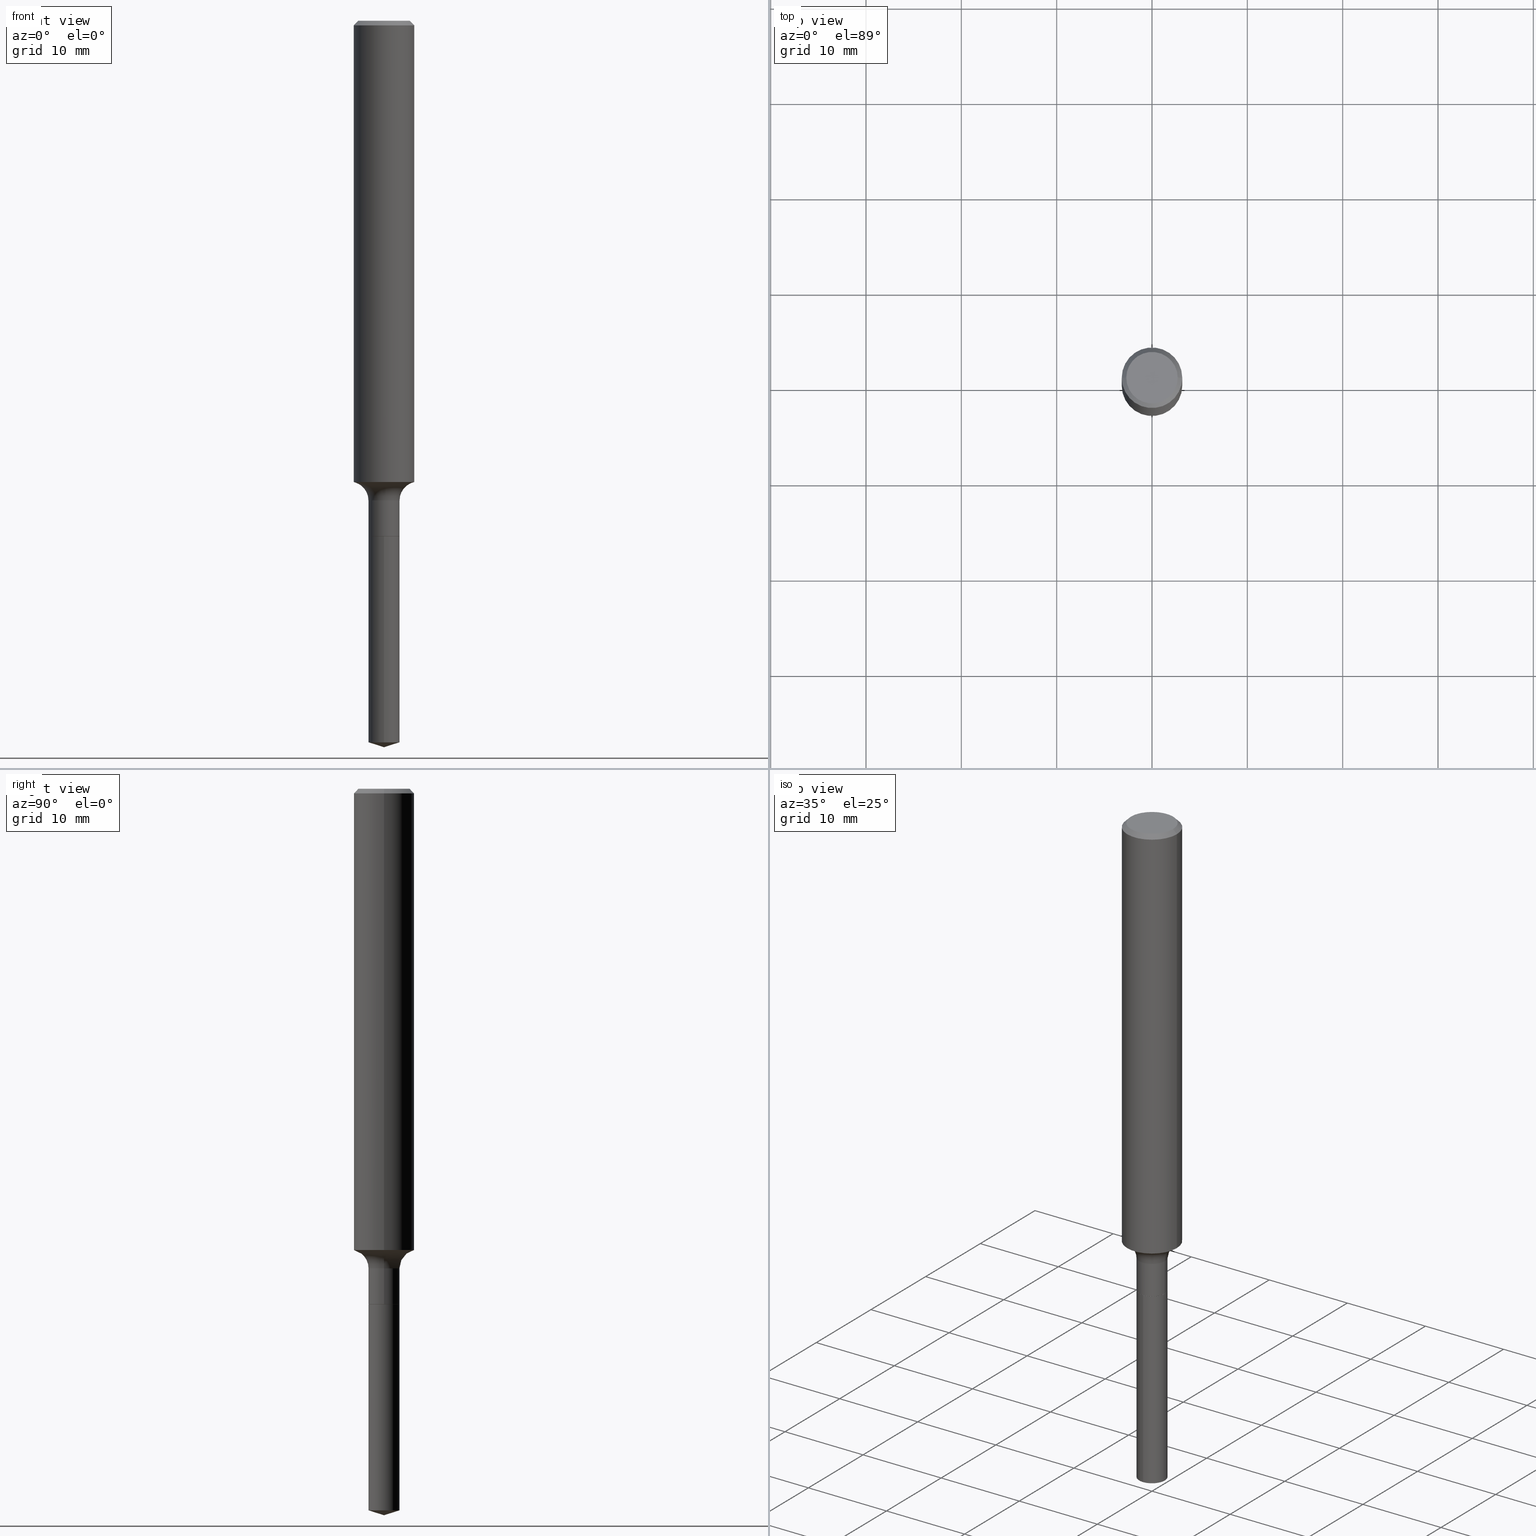
[diagram: canonical four-view strip — front | top / right | iso, engineering-drawing reading convention]
A machine part, canonical four-view strip (front | top / right | iso — engineering-drawing reading convention). The complete STEP part file that produces these views, byte-faithful:
ISO-10303-21;
HEADER;
FILE_DESCRIPTION (( 'STEP AP203' ),
    '1' );
FILE_NAME ('51581.STEP',
    '2024-04-19T13:02:28',
    ( '' ),
    ( '' ),
    'SwSTEP 2.0',
    'SolidWorks 2023',
    '' );
FILE_SCHEMA (( 'CONFIG_CONTROL_DESIGN' ));
ENDSEC;

DATA;
#1 = CARTESIAN_POINT ( 'NONE',  ( 5.205180353965063757E-29, -7.431618029727636515E-15, -2.128500000000000281 ) ) ;
#2 = CC_DESIGN_PERSON_AND_ORGANIZATION_ASSIGNMENT ( #200, #244, ( #61 ) ) ;
#3 = CARTESIAN_POINT ( 'NONE',  ( 6.364025535057318316E-46, -9.086141822531067035E-32, -2.602374448188125350E-17 ) ) ;
#4 = AXIS2_PLACEMENT_3D ( 'NONE', #57, #320, #131 ) ;
#5 = EDGE_CURVE ( 'NONE', #116, #245, #303, .T. ) ;
#6 = DIRECTION ( 'NONE',  ( -2.445468806185136597E-29, 3.491481338843145583E-15, 1.000000000000000000 ) ) ;
#7 = DIRECTION ( 'NONE',  ( -2.432262427219051972E-29, 3.510393625182989669E-15, 1.000000000000000000 ) ) ;
#8 = VECTOR ( 'NONE', #258, 39.37007874015748143 ) ;
#9 = VERTEX_POINT ( 'NONE', #422 ) ;
#10 = LINE ( 'NONE', #192, #478 ) ;
#11 = DIRECTION ( 'NONE',  ( 1.000000000000000000, -6.982962677686266711E-15, 4.877714189860772023E-29 ) ) ;
#12 = CARTESIAN_POINT ( 'NONE',  ( -4.486553520412906226E-16, -0.06425000000000745393, -2.128499999999999837 ) ) ;
#13 = ORIENTED_EDGE ( 'NONE', *, *, #193, .F. ) ;
#14 = AXIS2_PLACEMENT_3D ( 'NONE', #315, #6, #292 ) ;
#15 = SECURITY_CLASSIFICATION_LEVEL ( 'unclassified' ) ;
#16 = DIRECTION ( 'NONE',  ( -2.445468806185136597E-29, 3.491481338843145583E-15, 1.000000000000000000 ) ) ;
#17 = COORDINATED_UNIVERSAL_TIME_OFFSET ( 5, 0, .BEHIND. ) ;
#18 = DIRECTION ( 'NONE',  ( -1.000000000000000000, 7.105427357601003436E-15, 0.000000000000000000 ) ) ;
#19 = DIRECTION ( 'NONE',  ( 1.000000000000000000, -6.982962677686263555E-15, 0.000000000000000000 ) ) ;
#20 = AXIS2_PLACEMENT_3D ( 'NONE', #421, #240, #187 ) ;
#21 = APPROVAL_DATE_TIME ( #206, #445 ) ;
#22 = DIRECTION ( 'NONE',  ( 1.000000000000000000, -6.982962677686269077E-15, 0.000000000000000000 ) ) ;
#23 = CARTESIAN_POINT ( 'NONE',  ( 0.1422499999999999876, -7.908903528747489001E-15, -1.980699999999999905 ) ) ;
#24 = DIRECTION ( 'NONE',  ( -2.445468806185136597E-29, 3.491481338843145583E-15, 1.000000000000000000 ) ) ;
#25 = AXIS2_PLACEMENT_3D ( 'NONE', #340, #295, #103 ) ;
#26 = CARTESIAN_POINT ( 'NONE',  ( 4.565237077259373501E-16, 0.06424999999999256306, -2.128500000000000725 ) ) ;
#27 = EDGE_LOOP ( 'NONE', ( #138, #186 ) ) ;
#28 = CARTESIAN_POINT ( 'NONE',  ( 0.1250000000000000000, -9.383356098140928781E-16, -0.01875000000000014155 ) ) ;
#29 = VERTEX_POINT ( 'NONE', #79 ) ;
#30 = DIRECTION ( 'NONE',  ( -6.982962677686265922E-15, -1.000000000000000000, 3.500519750498636590E-15 ) ) ;
#31 = ORIENTED_EDGE ( 'NONE', *, *, #273, .T. ) ;
#32 = AXIS2_PLACEMENT_3D ( 'NONE', #105, #377, #30 ) ;
#33 = CARTESIAN_POINT ( 'NONE',  ( 4.657716586061579389E-29, -6.649984862093984679E-15, -1.904631363230303576 ) ) ;
#34 = ORIENTED_EDGE ( 'NONE', *, *, #176, .T. ) ;
#35 = CARTESIAN_POINT ( 'NONE',  ( 7.275624415494651683E-29, -1.041981270541542944E-14, -2.979742052814525977 ) ) ;
#36 = DIRECTION ( 'NONE',  ( -2.445468806185136597E-29, 3.491481338843145583E-15, 1.000000000000000000 ) ) ;
#37 =( LENGTH_UNIT ( ) NAMED_UNIT ( * ) SI_UNIT ( $, .METRE. ) );
#38 = ORIENTED_EDGE ( 'NONE', *, *, #449, .T. ) ;
#39 = EDGE_CURVE ( 'NONE', #66, #420, #470, .T. ) ;
#40 = DIRECTION ( 'NONE',  ( -2.432262427219051972E-29, 3.510393625182989669E-15, 1.000000000000000000 ) ) ;
#41 = AXIS2_PLACEMENT_3D ( 'NONE', #481, #304, #220 ) ;
#42 = CARTESIAN_POINT ( 'NONE',  ( 5.205180353965064878E-29, -7.431618029727636515E-15, -2.128500000000000725 ) ) ;
#43 = TOROIDAL_SURFACE ( 'NONE', #44, 0.1422499999999999876, 0.07800000000000006928 ) ;
#44 = AXIS2_PLACEMENT_3D ( 'NONE', #253, #216, #335 ) ;
#45 = CARTESIAN_POINT ( 'NONE',  ( 7.296787281657156478E-29, -1.053118087554896822E-14, -3.000000000000000444 ) ) ;
#46 = ORIENTED_EDGE ( 'NONE', *, *, #257, .T. ) ;
#47 = VECTOR ( 'NONE', #275, 39.37007874015748854 ) ;
#48 = ORIENTED_EDGE ( 'NONE', *, *, #323, .F. ) ;
#49 = DIRECTION ( 'NONE',  ( -2.432262427219051972E-29, 3.510393625182989669E-15, 1.000000000000000000 ) ) ;
#50 = CIRCLE ( 'NONE', #467, 0.1250000000000002498 ) ;
#51 = CARTESIAN_POINT ( 'NONE',  ( 0.000000000000000000, 0.000000000000000000, 0.000000000000000000 ) ) ;
#52 = PRODUCT ( '51581', '51581', '', ( #278 ) ) ;
#53 = CALENDAR_DATE ( 2024, 19, 4 ) ;
#54 = ADVANCED_FACE ( 'NONE', ( #279 ), #338, .T. ) ;
#55 = FACE_OUTER_BOUND ( 'NONE', #347, .T. ) ;
#56 = APPROVAL_ROLE ( '' ) ;
#57 = CARTESIAN_POINT ( 'NONE',  ( 5.205180353965064878E-29, -7.431618029727636515E-15, -2.128500000000000725 ) ) ;
#58 = ADVANCED_FACE ( 'NONE', ( #117 ), #238, .T. ) ;
#59 = AXIS2_PLACEMENT_3D ( 'NONE', #23, #403, #19 ) ;
#60 = FACE_OUTER_BOUND ( 'NONE', #302, .T. ) ;
#61 = PRODUCT_DEFINITION ( 'UNKNOWN', '', #443, #112 ) ;
#62 = LINE ( 'NONE', #109, #429 ) ;
#63 = ORIENTED_EDGE ( 'NONE', *, *, #264, .T. ) ;
#64 = VECTOR ( 'NONE', #400, 39.37007874015748143 ) ;
#65 = CARTESIAN_POINT ( 'NONE',  ( 4.657716586061579389E-29, -6.649984862093984679E-15, -1.904631363230303576 ) ) ;
#66 = VERTEX_POINT ( 'NONE', #81 ) ;
#67 = CYLINDRICAL_SURFACE ( 'NONE', #128, 0.06425000000000001543 ) ;
#68 = ORIENTED_EDGE ( 'NONE', *, *, #210, .F. ) ;
#69 = VECTOR ( 'NONE', #426, 39.37007874015748854 ) ;
#70 = CARTESIAN_POINT ( 'NONE',  ( -4.486553520412698164E-16, -0.06425000000001042377, -2.979742052814525977 ) ) ;
#71 = ORIENTED_EDGE ( 'NONE', *, *, #427, .F. ) ;
#72 = AXIS2_PLACEMENT_3D ( 'NONE', #472, #480, #132 ) ;
#73 = CARTESIAN_POINT ( 'NONE',  ( -0.06425000000000001543, -6.716200980726552309E-15, -2.128000000000000558 ) ) ;
#74 = ORIENTED_EDGE ( 'NONE', *, *, #484, .F. ) ;
#75 = EDGE_CURVE ( 'NONE', #420, #66, #102, .T. ) ;
#76 = PERSON_AND_ORGANIZATION ( #357, #247 ) ;
#77 = DIRECTION ( 'NONE',  ( 2.445468806185136597E-29, -3.491481338843145583E-15, -1.000000000000000000 ) ) ;
#78 = ADVANCED_FACE ( 'NONE', ( #156 ), #288, .T. ) ;
#79 = CARTESIAN_POINT ( 'NONE',  ( 0.06424999999999998768, -7.364232439887960955E-15, -1.980699999999999905 ) ) ;
#80 = APPROVAL_ROLE ( '' ) ;
#81 = CARTESIAN_POINT ( 'NONE',  ( 0.1062499999999999972, -8.259777185439880671E-16, -2.602374448187577153E-17 ) ) ;
#82 = EDGE_CURVE ( 'NONE', #9, #379, #246, .T. ) ;
#83 = MANIFOLD_SOLID_BREP ( 'Body-Move/Copy2[2]', #432 ) ;
#84 = CARTESIAN_POINT ( 'NONE',  ( 3.182012767528659158E-46, -4.543070911265533518E-32, -1.301187224094062675E-17 ) ) ;
#85 = PRODUCT_RELATED_PRODUCT_CATEGORY ( 'detail', '', ( #52 ) ) ;
#86 = VERTEX_POINT ( 'NONE', #251 ) ;
#87 = MANIFOLD_SOLID_BREP ( 'Body-Move/Copy2[1]', #462 ) ;
#88 = CALENDAR_DATE ( 2024, 19, 4 ) ;
#89 = VERTEX_POINT ( 'NONE', #125 ) ;
#90 = CALENDAR_DATE ( 2024, 19, 4 ) ;
#91 = CARTESIAN_POINT ( 'NONE',  ( 5.205180353965063757E-29, -7.431618029727636515E-15, -2.128500000000000281 ) ) ;
#92 = CIRCLE ( 'NONE', #239, 0.07800000000000008316 ) ;
#93 = DIRECTION ( 'NONE',  ( -2.445468806185136597E-29, 3.491481338843145583E-15, 1.000000000000000000 ) ) ;
#94 = DATE_AND_TIME ( #204, #183 ) ;
#95 = CARTESIAN_POINT ( 'NONE',  ( 0.000000000000000000, 0.000000000000000000, 0.000000000000000000 ) ) ;
#96 = EDGE_CURVE ( 'NONE', #86, #464, #92, .T. ) ;
#97 = COORDINATED_UNIVERSAL_TIME_OFFSET ( 5, 0, .BEHIND. ) ;
#98 = DIRECTION ( 'NONE',  ( 7.105427357601001859E-15, 1.000000000000000000, -3.491481338843145583E-15 ) ) ;
#99 = CC_DESIGN_PERSON_AND_ORGANIZATION_ASSIGNMENT ( #237, #230, ( #52 ) ) ;
#100 = CIRCLE ( 'NONE', #381, 0.1250000000000002498 ) ;
#101 = CYLINDRICAL_SURFACE ( 'NONE', #142, 0.06425000000000000155 ) ;
#102 = CIRCLE ( 'NONE', #442, 0.1062499999999999972 ) ;
#103 = DIRECTION ( 'NONE',  ( 1.000000000000000000, -6.982962677686268288E-15, 4.883557194083113462E-29 ) ) ;
#104 = ORIENTED_EDGE ( 'NONE', *, *, #257, .F. ) ;
#105 = CARTESIAN_POINT ( 'NONE',  ( -8.843346621705416771E-28, 1.277135473583265653E-13, 36.37007874015748143 ) ) ;
#106 = ORIENTED_EDGE ( 'NONE', *, *, #336, .F. ) ;
#107 = AXIS2_PLACEMENT_3D ( 'NONE', #363, #49, #435 ) ;
#108 = ADVANCED_FACE ( 'NONE', ( #286 ), #160, .T. ) ;
#109 = CARTESIAN_POINT ( 'NONE',  ( 0.1250000000000001110, -8.728703347107842263E-16, 6.095220969744926047E-30 ) ) ;
#110 = ADVANCED_BREP_SHAPE_REPRESENTATION ( '51581', ( #87, #83, #20 ), #113 ) ;
#111 = DIRECTION ( 'NONE',  ( 1.000000000000000000, -6.982962677686264344E-15, 0.000000000000000000 ) ) ;
#112 = DESIGN_CONTEXT ( 'detailed design', #297, 'design' ) ;
#113 =( GEOMETRIC_REPRESENTATION_CONTEXT ( 3 ) GLOBAL_UNCERTAINTY_ASSIGNED_CONTEXT ( ( #226 ) ) GLOBAL_UNIT_ASSIGNED_CONTEXT ( ( #346, #388, #355 ) ) REPRESENTATION_CONTEXT ( 'NONE', 'WORKASPACE' ) );
#114 = APPLICATION_PROTOCOL_DEFINITION ( 'international standard', 'config_control_design', 1994, #297 ) ;
#115 = CARTESIAN_POINT ( 'NONE',  ( 5.205180353965064878E-29, -7.431618029727636515E-15, -2.128500000000000725 ) ) ;
#116 = VERTEX_POINT ( 'NONE', #479 ) ;
#117 = FACE_OUTER_BOUND ( 'NONE', #393, .T. ) ;
#118 = CC_DESIGN_PERSON_AND_ORGANIZATION_ASSIGNMENT ( #434, #163, ( #443 ) ) ;
#119 = DIRECTION ( 'NONE',  ( 0.7071067811864267805, -2.468850131080992517E-15, 0.7071067811866682540 ) ) ;
#120 = CIRCLE ( 'NONE', #152, 0.06424999999999998768 ) ;
#121 = LOCAL_TIME ( 9, 2, 28.00000000000000000, #97 ) ;
#122 = ORIENTED_EDGE ( 'NONE', *, *, #322, .F. ) ;
#123 = APPROVAL_ROLE ( '' ) ;
#124 = DIRECTION ( 'NONE',  ( -2.445468806185136597E-29, 3.491481338843145583E-15, 1.000000000000000000 ) ) ;
#125 = CARTESIAN_POINT ( 'NONE',  ( 0.1250000000000003331, -7.522855196804770385E-15, -1.904631363230303576 ) ) ;
#126 = DATE_TIME_ROLE ( 'classification_date' ) ;
#127 = FACE_OUTER_BOUND ( 'NONE', #178, .T. ) ;
#128 = AXIS2_PLACEMENT_3D ( 'NONE', #174, #222, #414 ) ;
#129 = APPROVAL_DATE_TIME ( #475, #425 ) ;
#130 = CARTESIAN_POINT ( 'NONE',  ( 0.06375000000000000111, -7.876781900430136491E-15, -2.128500000000000725 ) ) ;
#131 = DIRECTION ( 'NONE',  ( 1.000000000000000000, -6.982962677686260400E-15, 0.000000000000000000 ) ) ;
#132 = DIRECTION ( 'NONE',  ( 1.000000000000000000, -6.982962677686266711E-15, 0.000000000000000000 ) ) ;
#133 = PRODUCT_DEFINITION_SHAPE ( 'NONE', 'NONE',  #61 ) ;
#134 = CC_DESIGN_SECURITY_CLASSIFICATION ( #396, ( #443 ) ) ;
#135 = DIRECTION ( 'NONE',  ( -2.445468806185136597E-29, 3.491481338843145583E-15, 1.000000000000000000 ) ) ;
#136 = ORIENTED_EDGE ( 'NONE', *, *, #173, .T. ) ;
#137 = DIRECTION ( 'NONE',  ( -2.432262427219051972E-29, 3.510393625182989669E-15, 1.000000000000000000 ) ) ;
#138 = ORIENTED_EDGE ( 'NONE', *, *, #75, .T. ) ;
#139 = ADVANCED_FACE ( 'NONE', ( #205 ), #408, .T. ) ;
#140 = CARTESIAN_POINT ( 'NONE',  ( -1.164090486565299290E-29, -1.655277638975020227E-14, -2.128500000000000725 ) ) ;
#141 = ORIENTED_EDGE ( 'NONE', *, *, #436, .F. ) ;
#142 = AXIS2_PLACEMENT_3D ( 'NONE', #51, #203, #394 ) ;
#143 = APPROVAL_PERSON_ORGANIZATION ( #76, #445, #80 ) ;
#144 = EDGE_CURVE ( 'NONE', #464, #29, #120, .T. ) ;
#145 = CARTESIAN_POINT ( 'NONE',  ( -8.843346621705416771E-28, 1.277135473583265653E-13, 36.37007874015748143 ) ) ;
#146 = ORIENTED_EDGE ( 'NONE', *, *, #364, .F. ) ;
#147 = FACE_OUTER_BOUND ( 'NONE', #181, .T. ) ;
#148 = VERTEX_POINT ( 'NONE', #289 ) ;
#149 = EDGE_CURVE ( 'NONE', #148, #344, #218, .T. ) ;
#150 = CARTESIAN_POINT ( 'NONE',  ( 7.353499816053537640E-29, -1.045067127260025243E-14, -3.000000000000000444 ) ) ;
#151 = DIRECTION ( 'NONE',  ( 1.000000000000000000, -6.982962677686260400E-15, 0.000000000000000000 ) ) ;
#152 = AXIS2_PLACEMENT_3D ( 'NONE', #366, #440, #405 ) ;
#153 = ORIENTED_EDGE ( 'NONE', *, *, #193, .T. ) ;
#154 = ORIENTED_EDGE ( 'NONE', *, *, #235, .T. ) ;
#155 = LINE ( 'NONE', #306, #277 ) ;
#156 = FACE_OUTER_BOUND ( 'NONE', #175, .T. ) ;
#157 = AXIS2_PLACEMENT_3D ( 'NONE', #213, #93, #162 ) ;
#158 = ORIENTED_EDGE ( 'NONE', *, *, #210, .T. ) ;
#159 = DATE_AND_TIME ( #53, #407 ) ;
#160 = CYLINDRICAL_SURFACE ( 'NONE', #207, 0.06425000000000000155 ) ;
#161 = ADVANCED_FACE ( 'NONE', ( #60 ), #328, .F. ) ;
#162 = DIRECTION ( 'NONE',  ( 1.000000000000000000, -6.982962677686267499E-15, 4.876176775795936353E-29 ) ) ;
#163 = PERSON_AND_ORGANIZATION_ROLE ( 'design_supplier' ) ;
#164 = FACE_OUTER_BOUND ( 'NONE', #243, .T. ) ;
#165 = DIMENSIONAL_EXPONENTS ( 1.000000000000000000, 0.000000000000000000, 0.000000000000000000, 0.000000000000000000, 0.000000000000000000, 0.000000000000000000, 0.000000000000000000 ) ;
#166 = PERSON_AND_ORGANIZATION_ROLE ( 'classification_officer' ) ;
#167 = DIRECTION ( 'NONE',  ( 1.000000000000000000, -6.982962677686267499E-15, 4.876176775795936353E-29 ) ) ;
#168 = ADVANCED_FACE ( 'NONE', ( #127 ), #189, .T. ) ;
#169 = APPROVAL ( #250, 'UNSPECIFIED' ) ;
#170 = COORDINATED_UNIVERSAL_TIME_OFFSET ( 5, 0, .BEHIND. ) ;
#171 = DIRECTION ( 'NONE',  ( -2.445468806185136597E-29, 3.491481338843145583E-15, 1.000000000000000000 ) ) ;
#172 = AXIS2_PLACEMENT_3D ( 'NONE', #35, #40, #242 ) ;
#173 = EDGE_CURVE ( 'NONE', #223, #466, #201, .T. ) ;
#174 = CARTESIAN_POINT ( 'NONE',  ( 5.205180353965063757E-29, -7.431618029727636515E-15, -2.128500000000000281 ) ) ;
#175 = EDGE_LOOP ( 'NONE', ( #352, #154, #376, #305 ) ) ;
#176 = EDGE_CURVE ( 'NONE', #223, #29, #293, .T. ) ;
#177 = FACE_OUTER_BOUND ( 'NONE', #337, .T. ) ;
#178 = EDGE_LOOP ( 'NONE', ( #199, #300, #383, #122 ) ) ;
#179 = FACE_OUTER_BOUND ( 'NONE', #27, .T. ) ;
#180 = ORIENTED_EDGE ( 'NONE', *, *, #378, .T. ) ;
#181 = EDGE_LOOP ( 'NONE', ( #354, #104, #153, #231 ) ) ;
#182 = ADVANCED_FACE ( 'NONE', ( #55 ), #370, .T. ) ;
#183 = LOCAL_TIME ( 9, 2, 28.00000000000000000, #212 ) ;
#184 = CARTESIAN_POINT ( 'NONE',  ( 7.275624415494651683E-29, -1.041981270541542944E-14, -2.979742052814525977 ) ) ;
#185 = VERTEX_POINT ( 'NONE', #331 ) ;
#186 = ORIENTED_EDGE ( 'NONE', *, *, #39, .T. ) ;
#187 = DIRECTION ( 'NONE',  ( 1.000000000000000000, 0.000000000000000000, 0.000000000000000000 ) ) ;
#188 = ORIENTED_EDGE ( 'NONE', *, *, #391, .F. ) ;
#189 = CONICAL_SURFACE ( 'NONE', #4, 0.06375000000000000111, 0.7853981633972775267 ) ;
#190 = CIRCLE ( 'NONE', #372, 0.06424999999999998768 ) ;
#191 = LOCAL_TIME ( 9, 2, 28.00000000000000000, #17 ) ;
#192 = CARTESIAN_POINT ( 'NONE',  ( -0.1250000000000000000, 8.074050596074738982E-16, -0.01875000000000014155 ) ) ;
#193 = EDGE_CURVE ( 'NONE', #89, #29, #406, .T. ) ;
#194 = DIRECTION ( 'NONE',  ( -2.445468806185136597E-29, 3.491481338843145583E-15, 1.000000000000000000 ) ) ;
#195 = DIRECTION ( 'NONE',  ( -2.445468806185136877E-29, 3.491481338843145188E-15, 1.000000000000000000 ) ) ;
#196 = ORIENTED_EDGE ( 'NONE', *, *, #264, .F. ) ;
#197 = VECTOR ( 'NONE', #119, 39.37007874015748143 ) ;
#198 = LINE ( 'NONE', #45, #47 ) ;
#199 = ORIENTED_EDGE ( 'NONE', *, *, #235, .F. ) ;
#200 = PERSON_AND_ORGANIZATION ( #357, #247 ) ;
#201 = CIRCLE ( 'NONE', #474, 0.06425000000000000155 ) ;
#202 = LINE ( 'NONE', #361, #350 ) ;
#203 = DIRECTION ( 'NONE',  ( -2.445468806185136597E-29, 3.491481338843145583E-15, 1.000000000000000000 ) ) ;
#204 = CALENDAR_DATE ( 2024, 19, 4 ) ;
#205 = FACE_OUTER_BOUND ( 'NONE', #313, .T. ) ;
#206 = DATE_AND_TIME ( #88, #121 ) ;
#207 = AXIS2_PLACEMENT_3D ( 'NONE', #95, #171, #252 ) ;
#208 = DIRECTION ( 'NONE',  ( 6.982962677686265922E-15, 1.000000000000000000, -3.510393625182989669E-15 ) ) ;
#209 = LOCAL_TIME ( 9, 2, 28.00000000000000000, #402 ) ;
#210 = EDGE_CURVE ( 'NONE', #379, #9, #358, .T. ) ;
#211 = EDGE_CURVE ( 'NONE', #86, #9, #321, .T. ) ;
#212 = COORDINATED_UNIVERSAL_TIME_OFFSET ( 5, 0, .BEHIND. ) ;
#213 = CARTESIAN_POINT ( 'NONE',  ( 0.000000000000000000, 0.000000000000000000, 0.000000000000000000 ) ) ;
#214 = AXIS2_PLACEMENT_3D ( 'NONE', #3, #124, #11 ) ;
#215 = DIRECTION ( 'NONE',  ( -2.438088387897960049E-29, 3.491481338843145188E-15, 1.000000000000000000 ) ) ;
#216 = DIRECTION ( 'NONE',  ( -2.445468806185136597E-29, 3.491481338843145583E-15, 1.000000000000000000 ) ) ;
#217 = ORIENTED_EDGE ( 'NONE', *, *, #96, .T. ) ;
#218 = CIRCLE ( 'NONE', #107, 0.06425000000000000155 ) ;
#219 = CC_DESIGN_APPROVAL ( #425, ( #443 ) ) ;
#220 = DIRECTION ( 'NONE',  ( 1.000000000000000000, -6.982962677686260400E-15, 0.000000000000000000 ) ) ;
#221 = ORIENTED_EDGE ( 'NONE', *, *, #458, .F. ) ;
#222 = DIRECTION ( 'NONE',  ( -2.432262427219051972E-29, 3.510393625182989669E-15, 1.000000000000000000 ) ) ;
#223 = VERTEX_POINT ( 'NONE', #444 ) ;
#224 = DIRECTION ( 'NONE',  ( 1.000000000000000000, -6.982962677686269077E-15, 0.000000000000000000 ) ) ;
#225 = ORIENTED_EDGE ( 'NONE', *, *, #149, .F. ) ;
#226 = UNCERTAINTY_MEASURE_WITH_UNIT (LENGTH_MEASURE( 1.000000000000000082E-05 ), #346, 'distance_accuracy_value', 'NONE');
#227 = CC_DESIGN_PERSON_AND_ORGANIZATION_ASSIGNMENT ( #365, #166, ( #396 ) ) ;
#228 = AXIS2_PLACEMENT_3D ( 'NONE', #91, #248, #208 ) ;
#229 = ADVANCED_FACE ( 'NONE', ( #164 ), #101, .T. ) ;
#230 = PERSON_AND_ORGANIZATION_ROLE ( 'design_owner' ) ;
#231 = ORIENTED_EDGE ( 'NONE', *, *, #336, .T. ) ;
#232 = AXIS2_PLACEMENT_3D ( 'NONE', #433, #234, #428 ) ;
#233 = DIRECTION ( 'NONE',  ( -1.000000000000000000, 6.982962677686265922E-15, -4.876176775795935793E-29 ) ) ;
#234 = DIRECTION ( 'NONE',  ( -2.432262427219051972E-29, 3.510393625182989669E-15, 1.000000000000000000 ) ) ;
#235 = EDGE_CURVE ( 'NONE', #116, #466, #202, .T. ) ;
#236 = CC_DESIGN_DATE_AND_TIME_ASSIGNMENT ( #468, #360, ( #61 ) ) ;
#237 = PERSON_AND_ORGANIZATION ( #357, #247 ) ;
#238 = CYLINDRICAL_SURFACE ( 'NONE', #232, 0.06425000000000001543 ) ;
#239 = AXIS2_PLACEMENT_3D ( 'NONE', #327, #98, #18 ) ;
#240 = DIRECTION ( 'NONE',  ( 0.000000000000000000, 0.000000000000000000, 1.000000000000000000 ) ) ;
#241 = DIRECTION ( 'NONE',  ( 1.000000000000000000, -6.982962677686266711E-15, 4.877714189860772023E-29 ) ) ;
#242 = DIRECTION ( 'NONE',  ( -6.982962677686267499E-15, -1.000000000000000000, 0.000000000000000000 ) ) ;
#243 = EDGE_LOOP ( 'NONE', ( #284, #384, #34, #455 ) ) ;
#244 = PERSON_AND_ORGANIZATION_ROLE ( 'creator' ) ;
#245 = VERTEX_POINT ( 'NONE', #130 ) ;
#246 = CIRCLE ( 'NONE', #14, 0.1250000000000000000 ) ;
#247 = ORGANIZATION ( 'UNSPECIFIED', 'UNSPECIFIED', '' ) ;
#248 = DIRECTION ( 'NONE',  ( 2.432262427219051692E-29, -3.510393625182989669E-15, -1.000000000000000000 ) ) ;
#249 = DIRECTION ( 'NONE',  ( -2.445468806185136597E-29, 3.491481338843145583E-15, 1.000000000000000000 ) ) ;
#250 = APPROVAL_STATUS ( 'not_yet_approved' ) ;
#251 = CARTESIAN_POINT ( 'NONE',  ( -0.1250000000000003331, -5.761806442393857869E-15, -1.904631363230303576 ) ) ;
#252 = DIRECTION ( 'NONE',  ( 1.000000000000000000, -6.982962677686265922E-15, 4.876176775795935232E-29 ) ) ;
#253 = CARTESIAN_POINT ( 'NONE',  ( 4.843740064410899913E-29, -6.915577087846618761E-15, -1.980699999999999905 ) ) ;
#254 = DIRECTION ( 'NONE',  ( -2.445468806185136597E-29, 3.491481338843145583E-15, 1.000000000000000000 ) ) ;
#255 = CIRCLE ( 'NONE', #172, 0.06425000000000001543 ) ;
#256 = EDGE_LOOP ( 'NONE', ( #31, #417, #225, #71 ) ) ;
#257 = EDGE_CURVE ( 'NONE', #89, #86, #50, .T. ) ;
#258 = DIRECTION ( 'NONE',  ( 0.7071067811865454633, -7.319954787623248157E-15, -0.7071067811865495711 ) ) ;
#259 = CIRCLE ( 'NONE', #309, 0.06425000000000001543 ) ;
#260 = ORIENTED_EDGE ( 'NONE', *, *, #484, .T. ) ;
#261 = APPROVAL_PERSON_ORGANIZATION ( #471, #169, #56 ) ;
#262 = DIRECTION ( 'NONE',  ( -2.432262427219051972E-29, 3.510393625182989669E-15, 1.000000000000000000 ) ) ;
#263 = ORIENTED_EDGE ( 'NONE', *, *, #458, .T. ) ;
#264 = EDGE_CURVE ( 'NONE', #89, #379, #62, .T. ) ;
#265 = CARTESIAN_POINT ( 'NONE',  ( 4.585254011597165626E-31, -6.546527510330947764E-17, -0.01875000000000014155 ) ) ;
#266 = CC_DESIGN_DATE_AND_TIME_ASSIGNMENT ( #94, #126, ( #396 ) ) ;
#267 = EDGE_LOOP ( 'NONE', ( #318, #270 ) ) ;
#268 = VECTOR ( 'NONE', #423, 39.37007874015748143 ) ;
#269 = DIRECTION ( 'NONE',  ( -0.7071067811865454633, 2.468850131082235367E-15, -0.7071067811865495711 ) ) ;
#270 = ORIENTED_EDGE ( 'NONE', *, *, #5, .F. ) ;
#271 = AXIS2_PLACEMENT_3D ( 'NONE', #145, #491, #447 ) ;
#272 = DIRECTION ( 'NONE',  ( -1.000000000000000000, 6.982962677686266711E-15, 0.000000000000000000 ) ) ;
#273 = EDGE_CURVE ( 'NONE', #296, #185, #259, .T. ) ;
#274 = ADVANCED_FACE ( 'NONE', ( #343 ), #456, .F. ) ;
#275 = DIRECTION ( 'NONE',  ( -6.659769872151643921E-15, -0.9537169507482283759, 0.3007057995042685672 ) ) ;
#276 = ORIENTED_EDGE ( 'NONE', *, *, #378, .F. ) ;
#277 = VECTOR ( 'NONE', #195, 39.37007874015748143 ) ;
#278 = MECHANICAL_CONTEXT ( 'NONE', #487, 'mechanical' ) ;
#279 = FACE_OUTER_BOUND ( 'NONE', #311, .T. ) ;
#280 = AXIS2_PLACEMENT_3D ( 'NONE', #473, #249, #167 ) ;
#281 = EDGE_CURVE ( 'NONE', #245, #116, #332, .T. ) ;
#282 = CARTESIAN_POINT ( 'NONE',  ( -0.06424999999999998768, -6.716200980726552309E-15, -1.980699999999999905 ) ) ;
#283 = CONICAL_SURFACE ( 'NONE', #271, 124.8659371009174919, 1.265363707695897233 ) ;
#284 = ORIENTED_EDGE ( 'NONE', *, *, #449, .F. ) ;
#285 = CARTESIAN_POINT ( 'NONE',  ( 4.585254011597165626E-31, -6.546527510330947764E-17, -0.01875000000000014155 ) ) ;
#286 = FACE_OUTER_BOUND ( 'NONE', #492, .T. ) ;
#287 = ADVANCED_FACE ( 'NONE', ( #375 ), #324, .T. ) ;
#288 = CONICAL_SURFACE ( 'NONE', #367, 0.06375000000000000111, 0.7853981633972775267 ) ;
#289 = CARTESIAN_POINT ( 'NONE',  ( -4.486553520412906226E-16, -0.06425000000000744005, -2.128499999999999837 ) ) ;
#290 = APPROVAL_STATUS ( 'not_yet_approved' ) ;
#291 = ADVANCED_FACE ( 'NONE', ( #299 ), #67, .T. ) ;
#292 = DIRECTION ( 'NONE',  ( 1.000000000000000000, -6.982962677686266711E-15, 0.000000000000000000 ) ) ;
#293 = LINE ( 'NONE', #438, #341 ) ;
#294 = CARTESIAN_POINT ( 'NONE',  ( -0.1250000000000001110, 8.881784197001260212E-16, -6.148668862818637832E-30 ) ) ;
#295 = DIRECTION ( 'NONE',  ( -2.445468806185136597E-29, 3.491481338843145583E-15, 1.000000000000000000 ) ) ;
#296 = VERTEX_POINT ( 'NONE', #70 ) ;
#297 = APPLICATION_CONTEXT ( 'configuration controlled 3d designs of mechanical parts and assemblies' ) ;
#298 = LINE ( 'NONE', #450, #8 ) ;
#299 = FACE_OUTER_BOUND ( 'NONE', #256, .T. ) ;
#300 = ORIENTED_EDGE ( 'NONE', *, *, #5, .T. ) ;
#301 = DIRECTION ( 'NONE',  ( 1.000000000000000000, -6.982962677686265922E-15, 4.876176775795935793E-29 ) ) ;
#302 = EDGE_LOOP ( 'NONE', ( #485, #263 ) ) ;
#303 = CIRCLE ( 'NONE', #446, 0.06375000000000000111 ) ;
#304 = DIRECTION ( 'NONE',  ( -2.445468806185136597E-29, 3.491481338843145583E-15, 1.000000000000000000 ) ) ;
#305 = ORIENTED_EDGE ( 'NONE', *, *, #399, .F. ) ;
#306 = CARTESIAN_POINT ( 'NONE',  ( -0.06425000000000000155, 4.565237077258643805E-16, -3.160415795488776479E-30 ) ) ;
#307 = DIRECTION ( 'NONE',  ( 1.000000000000000000, -6.982962677686260400E-15, 0.000000000000000000 ) ) ;
#308 = ADVANCED_FACE ( 'NONE', ( #371 ), #488, .T. ) ;
#309 = AXIS2_PLACEMENT_3D ( 'NONE', #184, #262, #409 ) ;
#310 = CARTESIAN_POINT ( 'NONE',  ( 7.296787281657155357E-29, -1.053118087554896822E-14, -3.000000000000000444 ) ) ;
#311 = EDGE_LOOP ( 'NONE', ( #413, #180, #158, #188 ) ) ;
#312 = LENGTH_MEASURE_WITH_UNIT ( LENGTH_MEASURE( 0.02539999999999999897 ), #37 );
#313 = EDGE_LOOP ( 'NONE', ( #457, #390, #63, #448 ) ) ;
#314 = DIRECTION ( 'NONE',  ( 2.438088387897960049E-29, -3.491481338843145188E-15, -1.000000000000000000 ) ) ;
#315 = CARTESIAN_POINT ( 'NONE',  ( 4.585254011597165626E-31, -6.546527510330947764E-17, -0.01875000000000014155 ) ) ;
#316 = AXIS2_PLACEMENT_3D ( 'NONE', #380, #24, #224 ) ;
#317 = LINE ( 'NONE', #150, #69 ) ;
#318 = ORIENTED_EDGE ( 'NONE', *, *, #281, .F. ) ;
#319 = AXIS2_PLACEMENT_3D ( 'NONE', #285, #77, #272 ) ;
#320 = DIRECTION ( 'NONE',  ( -2.445468806185136597E-29, 3.491481338843145583E-15, 1.000000000000000000 ) ) ;
#321 = LINE ( 'NONE', #294, #64 ) ;
#322 = EDGE_CURVE ( 'NONE', #466, #223, #411, .T. ) ;
#323 = EDGE_CURVE ( 'NONE', #86, #89, #100, .T. ) ;
#324 = CONICAL_SURFACE ( 'NONE', #459, 0.1250000000000000000, 0.7853981633974453924 ) ;
#325 = CALENDAR_DATE ( 2024, 19, 4 ) ;
#326 = CC_DESIGN_APPROVAL ( #169, ( #396 ) ) ;
#327 = CARTESIAN_POINT ( 'NONE',  ( -0.1422499999999999876, -5.904830046227876335E-15, -1.980699999999999905 ) ) ;
#328 = PLANE ( 'NONE',  #228 ) ;
#329 = CIRCLE ( 'NONE', #348, 0.06425000000000000155 ) ;
#330 = ADVANCED_FACE ( 'NONE', ( #452 ), #395, .F. ) ;
#331 = CARTESIAN_POINT ( 'NONE',  ( 4.565237077259370543E-16, 0.06424999999998956546, -2.979742052814525977 ) ) ;
#332 = CIRCLE ( 'NONE', #41, 0.06375000000000000111 ) ;
#333 = DIRECTION ( 'NONE',  ( 2.445468806185136597E-29, -3.491481338843145583E-15, -1.000000000000000000 ) ) ;
#334 = EDGE_LOOP ( 'NONE', ( #349, #451, #74 ) ) ;
#335 = DIRECTION ( 'NONE',  ( 1.000000000000000000, -6.982962677686268288E-15, 4.883557194083113462E-29 ) ) ;
#336 = EDGE_CURVE ( 'NONE', #29, #464, #190, .T. ) ;
#337 = EDGE_LOOP ( 'NONE', ( #141, #461, #460 ) ) ;
#338 = CONICAL_SURFACE ( 'NONE', #319, 0.1250000000000000000, 0.7853981633974453924 ) ;
#339 = PLANE ( 'NONE',  #392 ) ;
#340 = CARTESIAN_POINT ( 'NONE',  ( 4.843740064410899913E-29, -6.915577087846618761E-15, -1.980699999999999905 ) ) ;
#341 = VECTOR ( 'NONE', #441, 39.37007874015748143 ) ;
#342 = ORIENTED_EDGE ( 'NONE', *, *, #176, .F. ) ;
#343 = FACE_OUTER_BOUND ( 'NONE', #267, .T. ) ;
#344 = VERTEX_POINT ( 'NONE', #26 ) ;
#345 = ADVANCED_FACE ( 'NONE', ( #177 ), #283, .T. ) ;
#346 =( CONVERSION_BASED_UNIT ( 'INCH', #312 ) LENGTH_UNIT ( ) NAMED_UNIT ( #165 ) );
#347 = EDGE_LOOP ( 'NONE', ( #46, #482, #68, #196 ) ) ;
#348 = AXIS2_PLACEMENT_3D ( 'NONE', #1, #7, #430 ) ;
#349 = ORIENTED_EDGE ( 'NONE', *, *, #397, .F. ) ;
#350 = VECTOR ( 'NONE', #476, 39.37007874015748143 ) ;
#351 = APPROVAL_STATUS ( 'not_yet_approved' ) ;
#352 = ORIENTED_EDGE ( 'NONE', *, *, #281, .T. ) ;
#353 = LINE ( 'NONE', #12, #268 ) ;
#354 = ORIENTED_EDGE ( 'NONE', *, *, #96, .F. ) ;
#355 =( NAMED_UNIT ( * ) SI_UNIT ( $, .STERADIAN. ) SOLID_ANGLE_UNIT ( ) );
#356 = ORIENTED_EDGE ( 'NONE', *, *, #427, .T. ) ;
#357 = PERSON ( 'UNSPECIFIED', 'UNSPECIFIED', 'UNSPECIFIED', ('UNSPECIFIED'), ('UNSPECIFIED'), ('UNSPECIFIED') ) ;
#358 = CIRCLE ( 'NONE', #72, 0.1250000000000000000 ) ;
#359 = APPROVAL_PERSON_ORGANIZATION ( #404, #425, #123 ) ;
#360 = DATE_TIME_ROLE ( 'creation_date' ) ;
#361 = CARTESIAN_POINT ( 'NONE',  ( -0.06375000000000000111, -6.978647035680572836E-15, -2.128500000000000725 ) ) ;
#362 = ADVANCED_FACE ( 'NONE', ( #147 ), #43, .F. ) ;
#363 = CARTESIAN_POINT ( 'NONE',  ( 5.205180353965063757E-29, -7.431618029727636515E-15, -2.128500000000000281 ) ) ;
#364 = EDGE_CURVE ( 'NONE', #185, #344, #483, .T. ) ;
#365 = PERSON_AND_ORGANIZATION ( #357, #247 ) ;
#366 = CARTESIAN_POINT ( 'NONE',  ( 4.843740064410899913E-29, -6.915577087846618761E-15, -1.980699999999999905 ) ) ;
#367 = AXIS2_PLACEMENT_3D ( 'NONE', #42, #194, #151 ) ;
#368 = APPROVAL_DATE_TIME ( #159, #169 ) ;
#369 = CARTESIAN_POINT ( 'NONE',  ( 5.203957619561972077E-29, -7.429872289058215800E-15, -2.128000000000000558 ) ) ;
#370 = CYLINDRICAL_SURFACE ( 'NONE', #157, 0.1250000000000001110 ) ;
#371 = FACE_OUTER_BOUND ( 'NONE', #334, .T. ) ;
#372 = AXIS2_PLACEMENT_3D ( 'NONE', #412, #135, #489 ) ;
#373 = DIRECTION ( 'NONE',  ( -2.445468806185136877E-29, 3.491481338843145188E-15, 1.000000000000000000 ) ) ;
#374 = EDGE_LOOP ( 'NONE', ( #48, #217, #453, #13 ) ) ;
#375 = FACE_OUTER_BOUND ( 'NONE', #415, .T. ) ;
#376 = ORIENTED_EDGE ( 'NONE', *, *, #173, .F. ) ;
#377 = DIRECTION ( 'NONE',  ( -2.432262427219051972E-29, 3.510393625182989669E-15, 1.000000000000000000 ) ) ;
#378 = EDGE_CURVE ( 'NONE', #66, #379, #298, .T. ) ;
#379 = VERTEX_POINT ( 'NONE', #28 ) ;
#380 = CARTESIAN_POINT ( 'NONE',  ( 5.203957619561972077E-29, -7.429872289058215800E-15, -2.128000000000000558 ) ) ;
#381 = AXIS2_PLACEMENT_3D ( 'NONE', #33, #254, #410 ) ;
#382 = CC_DESIGN_APPROVAL ( #445, ( #61 ) ) ;
#383 = ORIENTED_EDGE ( 'NONE', *, *, #399, .T. ) ;
#384 = ORIENTED_EDGE ( 'NONE', *, *, #322, .T. ) ;
#385 = CARTESIAN_POINT ( 'NONE',  ( -0.1062499999999999972, 7.746724220558198188E-16, -2.602374448188655674E-17 ) ) ;
#386 = CARTESIAN_POINT ( 'NONE',  ( 6.364025535057318316E-46, -9.086141822531067035E-32, -2.602374448188125350E-17 ) ) ;
#387 = ORIENTED_EDGE ( 'NONE', *, *, #75, .F. ) ;
#388 =( NAMED_UNIT ( * ) PLANE_ANGLE_UNIT ( ) SI_UNIT ( $, .RADIAN. ) );
#389 = ADVANCED_FACE ( 'NONE', ( #179 ), #339, .F. ) ;
#390 = ORIENTED_EDGE ( 'NONE', *, *, #323, .T. ) ;
#391 = EDGE_CURVE ( 'NONE', #420, #9, #10, .T. ) ;
#392 = AXIS2_PLACEMENT_3D ( 'NONE', #84, #314, #233 ) ;
#393 = EDGE_LOOP ( 'NONE', ( #146, #260, #356, #221 ) ) ;
#394 = DIRECTION ( 'NONE',  ( 1.000000000000000000, -6.982962677686265922E-15, 4.876176775795935232E-29 ) ) ;
#395 = TOROIDAL_SURFACE ( 'NONE', #25, 0.1422499999999999876, 0.07800000000000006928 ) ;
#396 = SECURITY_CLASSIFICATION ( '', '', #15 ) ;
#397 = EDGE_CURVE ( 'NONE', #431, #185, #317, .T. ) ;
#398 = PERSON_AND_ORGANIZATION ( #357, #247 ) ;
#399 = EDGE_CURVE ( 'NONE', #245, #223, #418, .T. ) ;
#400 = DIRECTION ( 'NONE',  ( -2.445468806185136877E-29, 3.491481338843145188E-15, 1.000000000000000000 ) ) ;
#401 = VECTOR ( 'NONE', #137, 39.37007874015748143 ) ;
#402 = COORDINATED_UNIVERSAL_TIME_OFFSET ( 5, 0, .BEHIND. ) ;
#403 = DIRECTION ( 'NONE',  ( -6.982962677686266711E-15, -1.000000000000000000, 3.491481338843145583E-15 ) ) ;
#404 = PERSON_AND_ORGANIZATION ( #357, #247 ) ;
#405 = DIRECTION ( 'NONE',  ( 1.000000000000000000, -6.982962677686270655E-15, 0.000000000000000000 ) ) ;
#406 = CIRCLE ( 'NONE', #59, 0.07800000000000008316 ) ;
#407 = LOCAL_TIME ( 9, 2, 28.00000000000000000, #170 ) ;
#408 = CYLINDRICAL_SURFACE ( 'NONE', #280, 0.1250000000000001110 ) ;
#409 = DIRECTION ( 'NONE',  ( -6.982962677686267499E-15, -1.000000000000000000, 0.000000000000000000 ) ) ;
#410 = DIRECTION ( 'NONE',  ( 1.000000000000000000, -6.982962677686264344E-15, 0.000000000000000000 ) ) ;
#411 = CIRCLE ( 'NONE', #316, 0.06425000000000000155 ) ;
#412 = CARTESIAN_POINT ( 'NONE',  ( 4.843740064410899913E-29, -6.915577087846618761E-15, -1.980699999999999905 ) ) ;
#413 = ORIENTED_EDGE ( 'NONE', *, *, #39, .F. ) ;
#414 = DIRECTION ( 'NONE',  ( -6.982962677686265922E-15, -1.000000000000000000, 4.251903492084454984E-15 ) ) ;
#415 = EDGE_LOOP ( 'NONE', ( #276, #387, #424, #490 ) ) ;
#416 = DIRECTION ( 'NONE',  ( -1.000000000000000000, 6.982962677686266711E-15, 0.000000000000000000 ) ) ;
#417 = ORIENTED_EDGE ( 'NONE', *, *, #364, .T. ) ;
#418 = LINE ( 'NONE', #465, #197 ) ;
#419 = AXIS2_PLACEMENT_3D ( 'NONE', #140, #215, #301 ) ;
#420 = VERTEX_POINT ( 'NONE', #385 ) ;
#421 = CARTESIAN_POINT ( 'NONE',  ( 0.000000000000000000, 0.000000000000000000, 0.000000000000000000 ) ) ;
#422 = CARTESIAN_POINT ( 'NONE',  ( -0.1250000000000000000, -2.469546648898519313E-15, -0.01875000000000014155 ) ) ;
#423 = DIRECTION ( 'NONE',  ( -2.432262427219051972E-29, 3.510393625182989669E-15, 1.000000000000000000 ) ) ;
#424 = ORIENTED_EDGE ( 'NONE', *, *, #391, .T. ) ;
#425 = APPROVAL ( #290, 'UNSPECIFIED' ) ;
#426 = DIRECTION ( 'NONE',  ( 6.776566513254266815E-15, 0.9537169507482303743, 0.3007057995042618503 ) ) ;
#427 = EDGE_CURVE ( 'NONE', #296, #148, #353, .T. ) ;
#428 = DIRECTION ( 'NONE',  ( -6.982962677686265922E-15, -1.000000000000000000, 4.251903492084454984E-15 ) ) ;
#429 = VECTOR ( 'NONE', #373, 39.37007874015748143 ) ;
#430 = DIRECTION ( 'NONE',  ( -6.982962677686265922E-15, -1.000000000000000000, 4.251903492084456561E-15 ) ) ;
#431 = VERTEX_POINT ( 'NONE', #310 ) ;
#432 = CLOSED_SHELL ( 'NONE', ( #78, #54, #182, #330, #108, #229, #362, #139, #287, #389, #274, #168 ) ) ;
#433 = CARTESIAN_POINT ( 'NONE',  ( 5.205180353965063757E-29, -7.431618029727636515E-15, -2.128500000000000281 ) ) ;
#434 = PERSON_AND_ORGANIZATION ( #357, #247 ) ;
#435 = DIRECTION ( 'NONE',  ( -6.982962677686265922E-15, -1.000000000000000000, 4.251903492084456561E-15 ) ) ;
#436 = EDGE_CURVE ( 'NONE', #431, #296, #198, .T. ) ;
#437 = SHAPE_DEFINITION_REPRESENTATION ( #133, #110 ) ;
#438 = CARTESIAN_POINT ( 'NONE',  ( 0.06425000000000000155, -4.486553520413425888E-16, 3.132943578448888481E-30 ) ) ;
#439 = PERSON_AND_ORGANIZATION_ROLE ( 'creator' ) ;
#440 = DIRECTION ( 'NONE',  ( -2.445468806185136597E-29, 3.491481338843145583E-15, 1.000000000000000000 ) ) ;
#441 = DIRECTION ( 'NONE',  ( -2.445468806185136877E-29, 3.491481338843145188E-15, 1.000000000000000000 ) ) ;
#442 = AXIS2_PLACEMENT_3D ( 'NONE', #386, #36, #241 ) ;
#443 = PRODUCT_DEFINITION_FORMATION_WITH_SPECIFIED_SOURCE ( 'ANY', '', #52, .NOT_KNOWN. ) ;
#444 = CARTESIAN_POINT ( 'NONE',  ( 0.06425000000000000155, -7.878527641099558784E-15, -2.128000000000000558 ) ) ;
#445 = APPROVAL ( #351, 'UNSPECIFIED' ) ;
#446 = AXIS2_PLACEMENT_3D ( 'NONE', #115, #469, #307 ) ;
#447 = DIRECTION ( 'NONE',  ( -6.982962677686265922E-15, -1.000000000000000000, 3.500519750498636590E-15 ) ) ;
#448 = ORIENTED_EDGE ( 'NONE', *, *, #82, .F. ) ;
#449 = EDGE_CURVE ( 'NONE', #466, #464, #155, .T. ) ;
#450 = CARTESIAN_POINT ( 'NONE',  ( 0.1250000000000000000, -9.230275248247509846E-16, -0.01875000000000014155 ) ) ;
#451 = ORIENTED_EDGE ( 'NONE', *, *, #436, .T. ) ;
#452 = FACE_OUTER_BOUND ( 'NONE', #374, .T. ) ;
#453 = ORIENTED_EDGE ( 'NONE', *, *, #144, .T. ) ;
#454 = DIRECTION ( 'NONE',  ( -2.445468806185136597E-29, 3.491481338843145583E-15, 1.000000000000000000 ) ) ;
#455 = ORIENTED_EDGE ( 'NONE', *, *, #144, .F. ) ;
#456 = PLANE ( 'NONE',  #419 ) ;
#457 = ORIENTED_EDGE ( 'NONE', *, *, #211, .F. ) ;
#458 = EDGE_CURVE ( 'NONE', #344, #148, #329, .T. ) ;
#459 = AXIS2_PLACEMENT_3D ( 'NONE', #265, #333, #416 ) ;
#460 = ORIENTED_EDGE ( 'NONE', *, *, #273, .F. ) ;
#461 = ORIENTED_EDGE ( 'NONE', *, *, #397, .T. ) ;
#462 = CLOSED_SHELL ( 'NONE', ( #291, #345, #308, #58, #161 ) ) ;
#463 = APPLICATION_PROTOCOL_DEFINITION ( 'international standard', 'config_control_design', 1994, #487 ) ;
#464 = VERTEX_POINT ( 'NONE', #282 ) ;
#465 = CARTESIAN_POINT ( 'NONE',  ( 0.06375000000000000111, -7.876781900430136491E-15, -2.128500000000000725 ) ) ;
#466 = VERTEX_POINT ( 'NONE', #73 ) ;
#467 = AXIS2_PLACEMENT_3D ( 'NONE', #65, #454, #111 ) ;
#468 = DATE_AND_TIME ( #325, #209 ) ;
#469 = DIRECTION ( 'NONE',  ( -2.445468806185136597E-29, 3.491481338843145583E-15, 1.000000000000000000 ) ) ;
#470 = CIRCLE ( 'NONE', #214, 0.1062499999999999972 ) ;
#471 = PERSON_AND_ORGANIZATION ( #357, #247 ) ;
#472 = CARTESIAN_POINT ( 'NONE',  ( 4.585254011597165626E-31, -6.546527510330947764E-17, -0.01875000000000014155 ) ) ;
#473 = CARTESIAN_POINT ( 'NONE',  ( 0.000000000000000000, 0.000000000000000000, 0.000000000000000000 ) ) ;
#474 = AXIS2_PLACEMENT_3D ( 'NONE', #369, #16, #22 ) ;
#475 = DATE_AND_TIME ( #90, #191 ) ;
#476 = DIRECTION ( 'NONE',  ( -0.7071067811864267805, 7.493145998869918709E-15, 0.7071067811866682540 ) ) ;
#477 = CC_DESIGN_PERSON_AND_ORGANIZATION_ASSIGNMENT ( #398, #439, ( #443 ) ) ;
#478 = VECTOR ( 'NONE', #269, 39.37007874015748143 ) ;
#479 = CARTESIAN_POINT ( 'NONE',  ( -0.06375000000000000111, -6.975997808506460846E-15, -2.128500000000000725 ) ) ;
#480 = DIRECTION ( 'NONE',  ( -2.445468806185136597E-29, 3.491481338843145583E-15, 1.000000000000000000 ) ) ;
#481 = CARTESIAN_POINT ( 'NONE',  ( 5.205180353965064878E-29, -7.431618029727636515E-15, -2.128500000000000725 ) ) ;
#482 = ORIENTED_EDGE ( 'NONE', *, *, #211, .T. ) ;
#483 = LINE ( 'NONE', #486, #401 ) ;
#484 = EDGE_CURVE ( 'NONE', #185, #296, #255, .T. ) ;
#485 = ORIENTED_EDGE ( 'NONE', *, *, #149, .T. ) ;
#486 = CARTESIAN_POINT ( 'NONE',  ( 4.565237077259164453E-16, 0.06424999999999257694, -2.128500000000000725 ) ) ;
#487 = APPLICATION_CONTEXT ( 'configuration controlled 3d designs of mechanical parts and assemblies' ) ;
#488 = CONICAL_SURFACE ( 'NONE', #32, 124.8659371009174919, 1.265363707695897233 ) ;
#489 = DIRECTION ( 'NONE',  ( 1.000000000000000000, -6.982962677686270655E-15, 0.000000000000000000 ) ) ;
#490 = ORIENTED_EDGE ( 'NONE', *, *, #82, .T. ) ;
#491 = DIRECTION ( 'NONE',  ( -2.432262427219051972E-29, 3.510393625182989669E-15, 1.000000000000000000 ) ) ;
#492 = EDGE_LOOP ( 'NONE', ( #136, #38, #106, #342 ) ) ;
ENDSEC;
END-ISO-10303-21;
